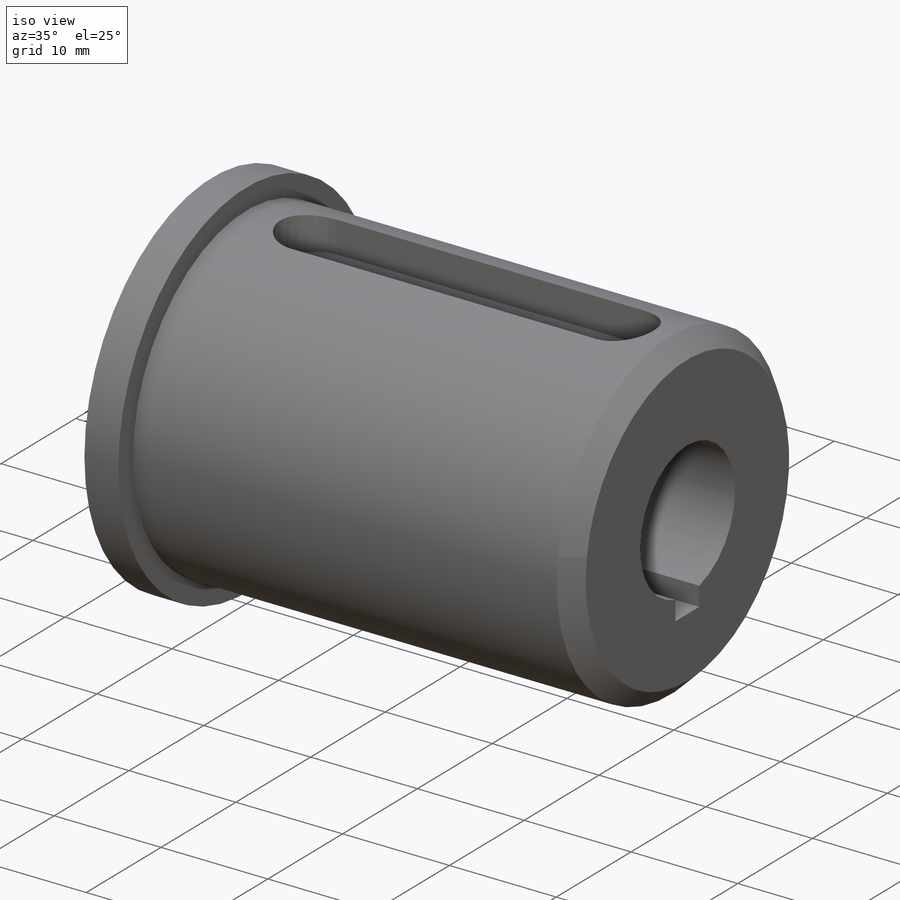
[diagram: iso view]
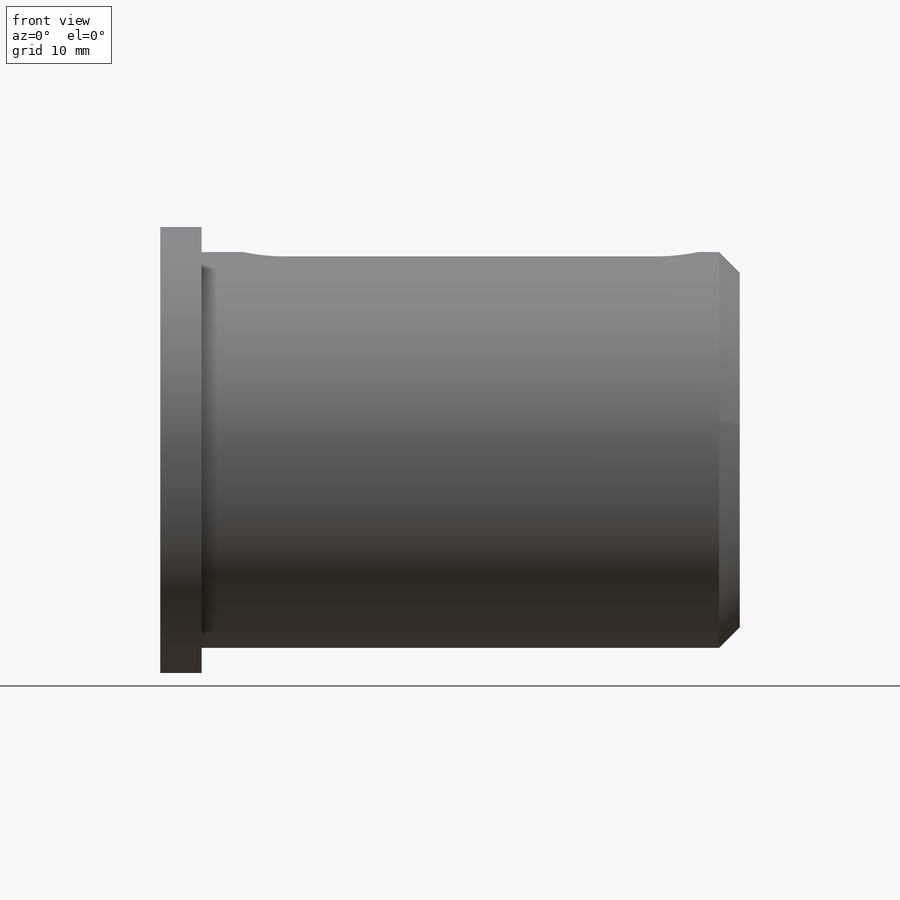
[diagram: front view]
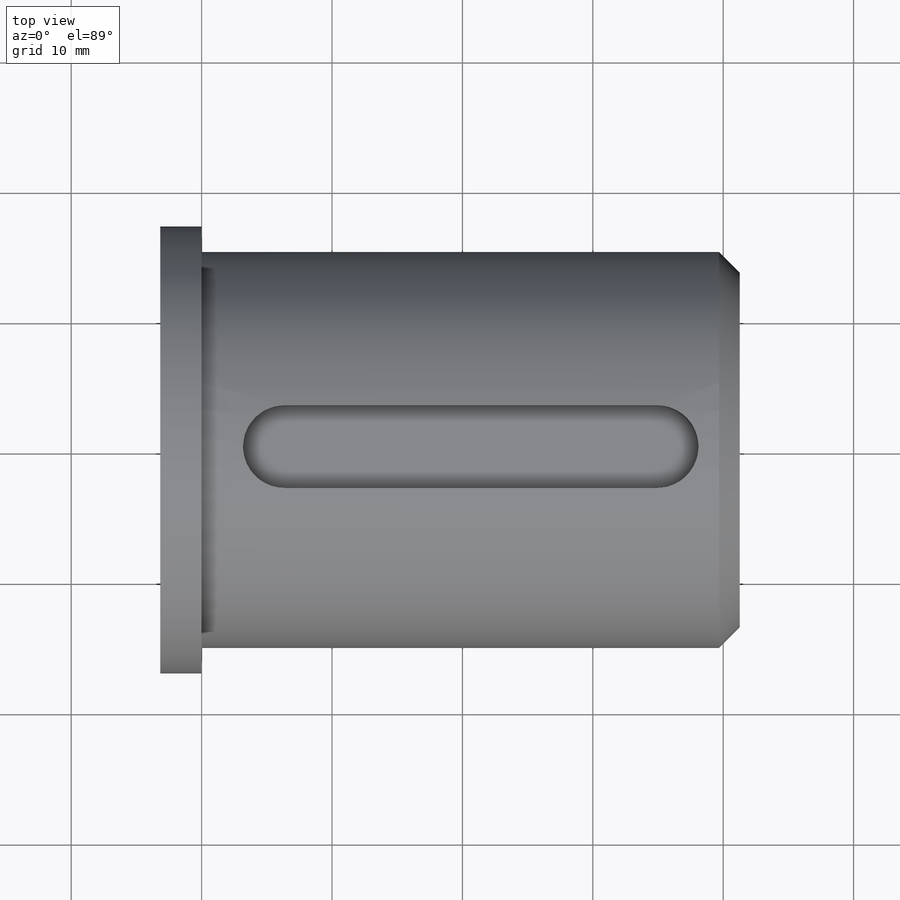
[diagram: top view]
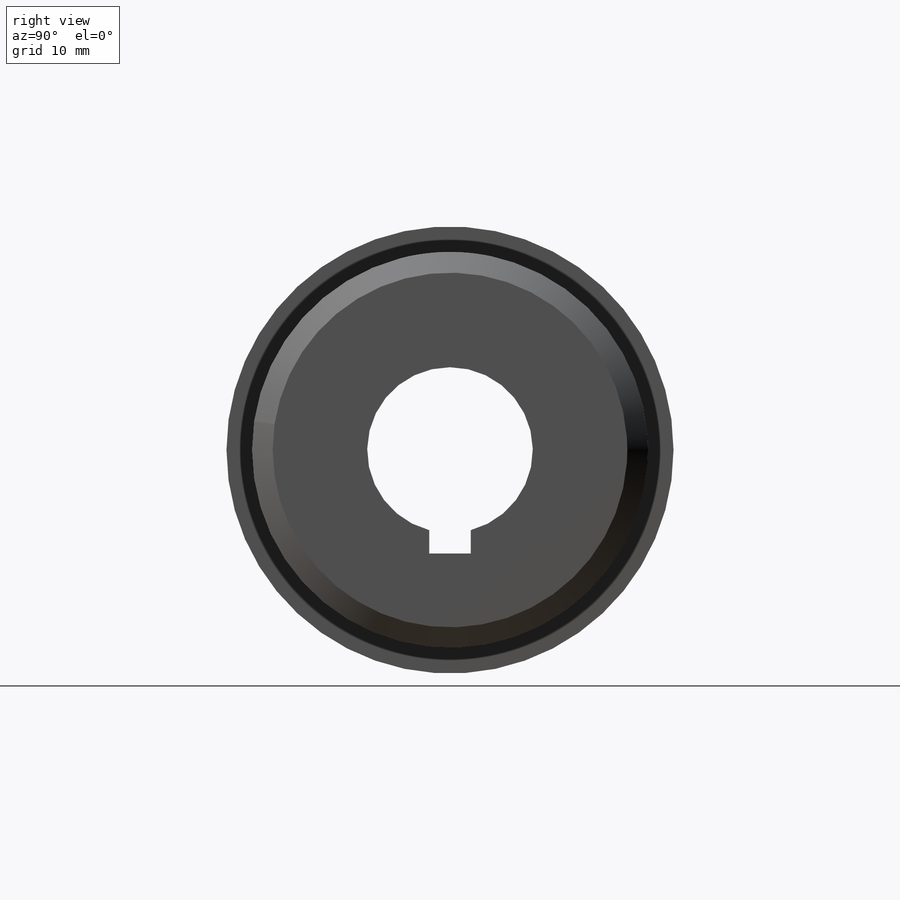
[diagram: right view]
SOLIDWORKS PART (.sldprt)
format: sldprt  version: not decoded by parser v0  size: 252,928 bytes
history: native  units: mm
features: sketch x5, extrude x4, material x1, cut_extrude x1, fillet x1, chamfer x1 (+13 scaffold rows collapsed)
feature tree (26):
  scaffold x13  (default folders/planes/origin — collapsed)
  material  "Delrin 2700 NC010, Low Viscosity Acetal Copolymer (SS)"
  sketch  "Sketch1"  dims[D1=15.1638mm]
  extrude  "Boss-Extrude1"  Depth=41.275mm
  sketch  "Sketch2"  dims[c1.D1=6.35mm c1.D2=3.175mm c1.D3=3.175mm c1.D4=1.5875mm c1.D5=1.5875mm c1.D6=3.175mm c2.D4=7.9375mm c2.D5=3.175mm c2.D2=~15.08125mm]
  cut_extrude  "Cut-Extrude1"  [1 undecoded]
  sketch  "Sketch3"  dims[D1=19.05mm]
  extrude  "Boss-Extrude2"  Depth=3.175mm
  sketch  "Sketch4"  dims[D1=15.1638mm]
  extrude  "Boss-Extrude3"  Depth=3.175mm
  sketch  "Sketch5"
  extrude  "Boss-Extrude4"  Depth=3.175mm
  fillet  "Fillet1"  Radius=3.175mm
  chamfer  "Chamfer1"  Distance=1.5875mm Angle=45deg
decode coverage: 10 of 12 modeling features carry decoded parameters
note: ~ marks probable driven/reference dimensions
note: 1 parameter value undecoded
note: suppression state not decoded; provenance and decode notes live in map.json
